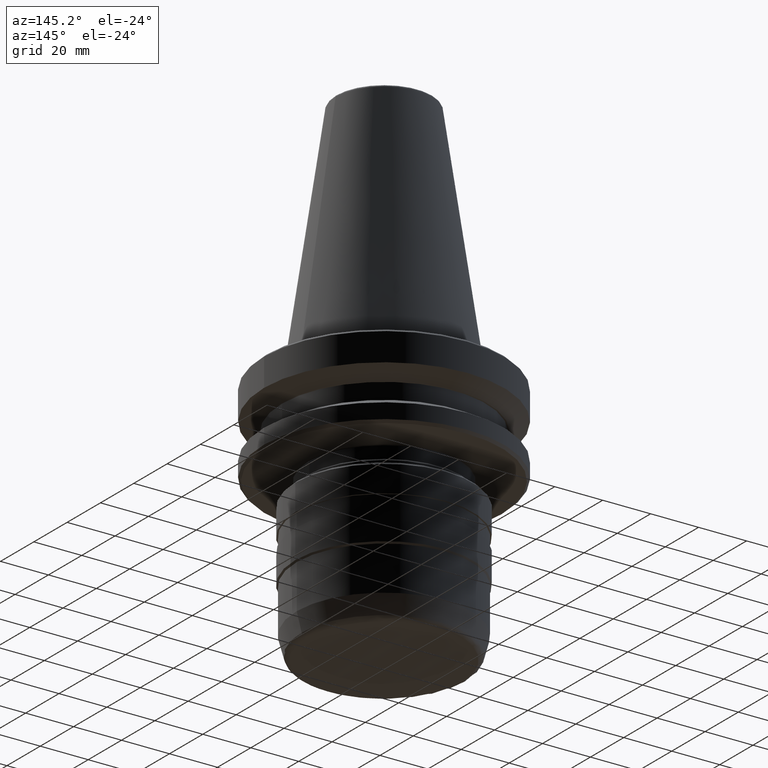
[diagram: clean part render]
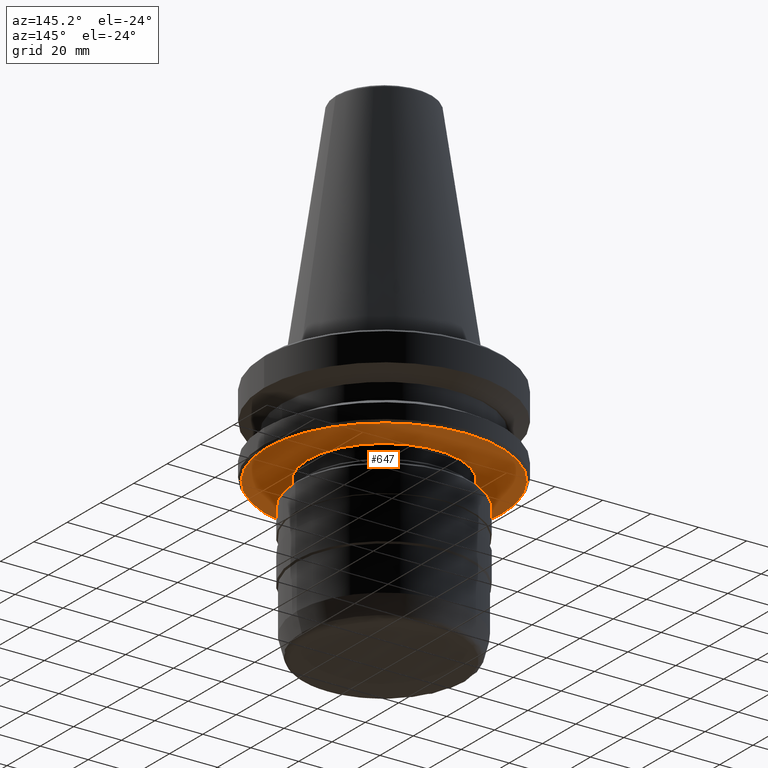
[diagram: same view with one face highlighted and labeled with its STEP entity id]
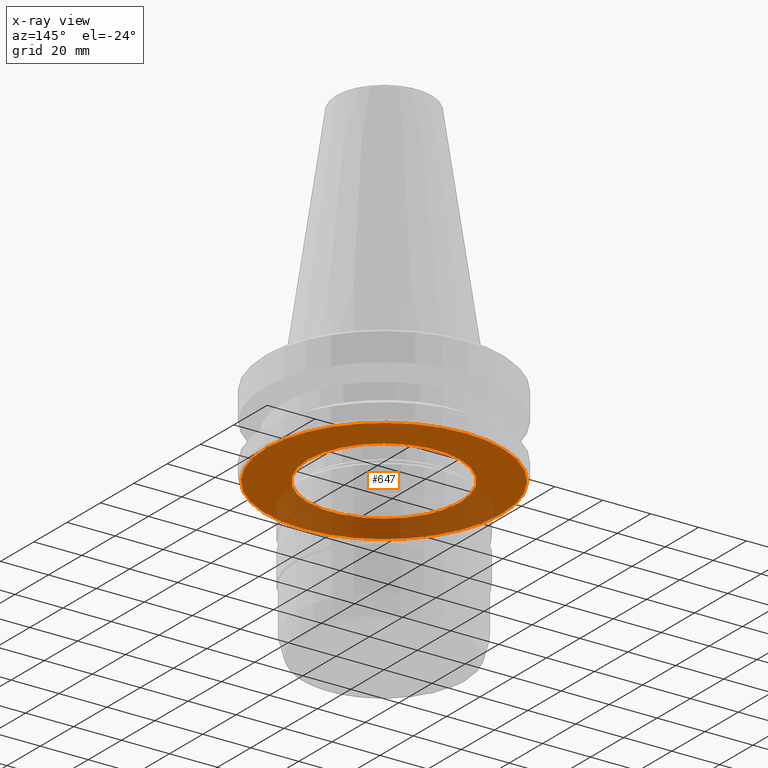
[diagram: x-ray of the same camera — body ghosted, the highlighted face saturated]
A machine part, auxiliary view. The second image highlights one B-rep face of the part: STEP entity #647.
The next image is the same camera in x-ray: the body ghosted, the highlighted face saturated — about 35% of this face is hidden behind the body in this view.
In plain terms, the highlighted planar face has unit normal (0, -0, 1).
Its self-contained STEP definition (entity closure, byte-faithful):
#9 = CARTESIAN_POINT ( 'NONE',  ( -49.00000000000004300, 6.062001655779424500E-015, -38.00000000000201800 ) ) ;
#98 = EDGE_LOOP ( 'NONE', ( #165, #1650 ) ) ;
#124 = DIRECTION ( 'NONE',  ( -0.0000000000000000000, -0.0000000000000000000, 1.000000000000000000 ) ) ;
#141 = VERTEX_POINT ( 'NONE', #501 ) ;
#145 = EDGE_CURVE ( 'NONE', #1520, #1580, #1328, .T. ) ;
#165 = ORIENTED_EDGE ( 'NONE', *, *, #612, .F. ) ;
#171 = EDGE_CURVE ( 'NONE', #1053, #141, #1350, .T. ) ;
#190 = DIRECTION ( 'NONE',  ( 1.000000000000000000, 0.0000000000000000000, 0.0000000000000000000 ) ) ;
#288 = ORIENTED_EDGE ( 'NONE', *, *, #145, .T. ) ;
#403 = CARTESIAN_POINT ( 'NONE',  ( 0.0000000000000000000, 0.0000000000000000000, -38.00000000000201800 ) ) ;
#488 = AXIS2_PLACEMENT_3D ( 'NONE', #710, #517, #1291 ) ;
#489 = CARTESIAN_POINT ( 'NONE',  ( 31.75000000000149900, 0.0000000000000000000, -38.00000000000183300 ) ) ;
#501 = CARTESIAN_POINT ( 'NONE',  ( 49.00000000000004300, 0.0000000000000000000, -38.00000000000201800 ) ) ;
#517 = DIRECTION ( 'NONE',  ( -0.0000000000000000000, -0.0000000000000000000, 1.000000000000000000 ) ) ;
#612 = EDGE_CURVE ( 'NONE', #141, #1053, #796, .T. ) ;
#647 = ADVANCED_FACE ( 'NONE', ( #1666, #770 ), #1622, .F. ) ;
#710 = CARTESIAN_POINT ( 'NONE',  ( 0.0000000000000000000, 0.0000000000000000000, -38.00000000000201800 ) ) ;
#720 = DIRECTION ( 'NONE',  ( -0.0000000000000000000, -0.0000000000000000000, 1.000000000000000000 ) ) ;
#721 = EDGE_CURVE ( 'NONE', #1580, #1520, #932, .T. ) ;
#770 = FACE_BOUND ( 'NONE', #1274, .T. ) ;
#796 = CIRCLE ( 'NONE', #940, 49.00000000000004300 ) ;
#834 = CARTESIAN_POINT ( 'NONE',  ( 0.0000000000000000000, 0.0000000000000000000, -38.00000000000201800 ) ) ;
#846 = AXIS2_PLACEMENT_3D ( 'NONE', #1020, #124, #190 ) ;
#854 = DIRECTION ( 'NONE',  ( 1.000000000000000000, 0.0000000000000000000, 0.0000000000000000000 ) ) ;
#932 = CIRCLE ( 'NONE', #1030, 31.75000000000149900 ) ;
#940 = AXIS2_PLACEMENT_3D ( 'NONE', #403, #720, #1373 ) ;
#1020 = CARTESIAN_POINT ( 'NONE',  ( 0.0000000000000000000, 0.0000000000000000000, -38.00000000000201800 ) ) ;
#1030 = AXIS2_PLACEMENT_3D ( 'NONE', #834, #1514, #1572 ) ;
#1053 = VERTEX_POINT ( 'NONE', #9 ) ;
#1130 = DIRECTION ( 'NONE',  ( 0.0000000000000000000, -0.0000000000000000000, 1.000000000000000000 ) ) ;
#1245 = ORIENTED_EDGE ( 'NONE', *, *, #721, .T. ) ;
#1253 = AXIS2_PLACEMENT_3D ( 'NONE', #1524, #1130, #854 ) ;
#1274 = EDGE_LOOP ( 'NONE', ( #288, #1245 ) ) ;
#1291 = DIRECTION ( 'NONE',  ( 1.000000000000000000, 0.0000000000000000000, 0.0000000000000000000 ) ) ;
#1295 = CARTESIAN_POINT ( 'NONE',  ( -31.75000000000149900, 3.888253587293030300E-015, -38.00000000000183300 ) ) ;
#1328 = CIRCLE ( 'NONE', #846, 31.75000000000149900 ) ;
#1350 = CIRCLE ( 'NONE', #488, 49.00000000000004300 ) ;
#1373 = DIRECTION ( 'NONE',  ( 1.000000000000000000, 0.0000000000000000000, 0.0000000000000000000 ) ) ;
#1514 = DIRECTION ( 'NONE',  ( -0.0000000000000000000, -0.0000000000000000000, 1.000000000000000000 ) ) ;
#1520 = VERTEX_POINT ( 'NONE', #489 ) ;
#1524 = CARTESIAN_POINT ( 'NONE',  ( 0.0000000000000000000, 49.00000000000004300, -38.00000000000203200 ) ) ;
#1572 = DIRECTION ( 'NONE',  ( 1.000000000000000000, 0.0000000000000000000, 0.0000000000000000000 ) ) ;
#1580 = VERTEX_POINT ( 'NONE', #1295 ) ;
#1622 = PLANE ( 'NONE',  #1253 ) ;
#1650 = ORIENTED_EDGE ( 'NONE', *, *, #171, .F. ) ;
#1666 = FACE_OUTER_BOUND ( 'NONE', #98, .T. ) ;